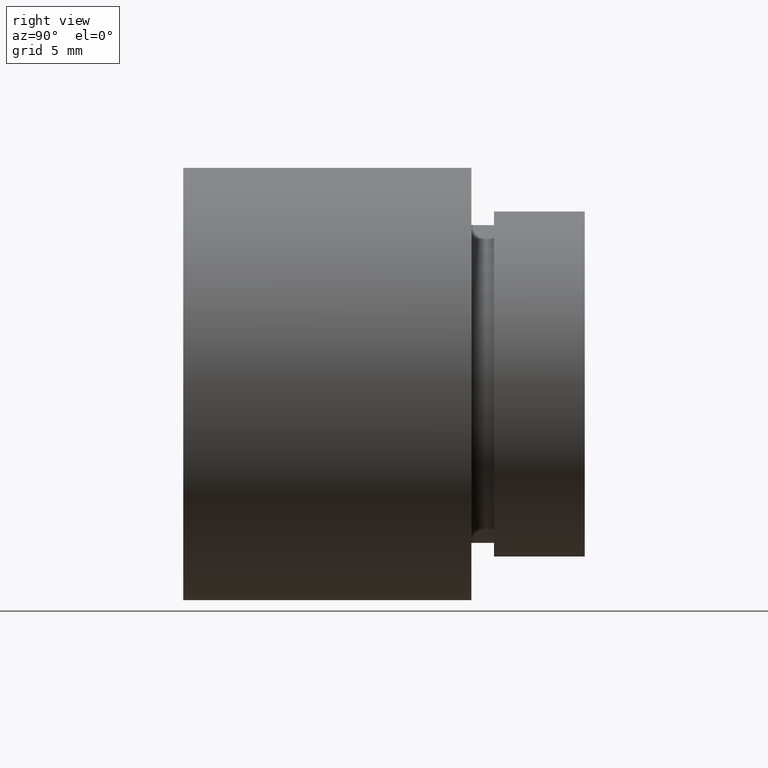
[diagram: clean part render]
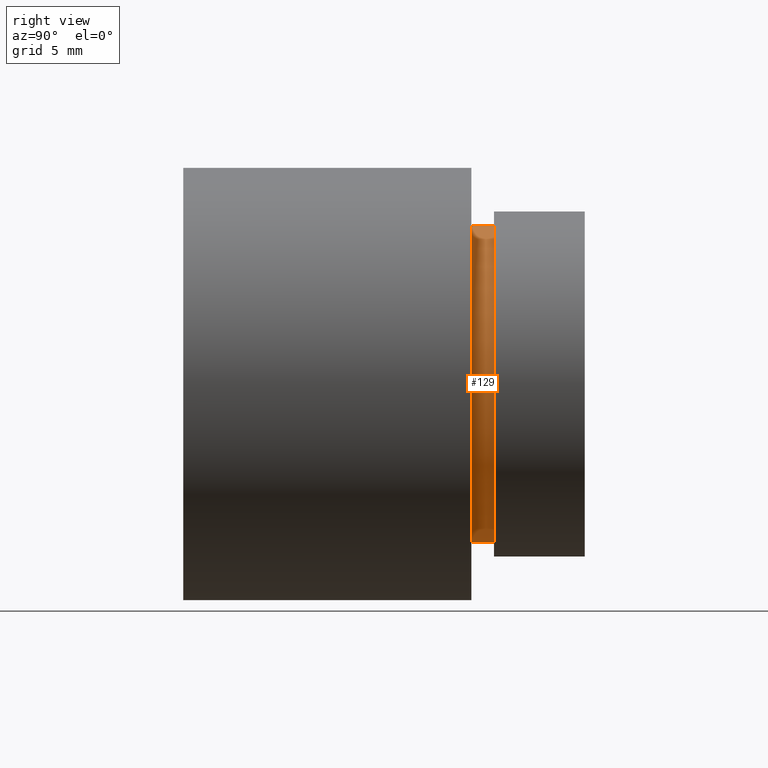
[diagram: same view with one face highlighted and labeled with its STEP entity id]
A machine part, right view. The second image highlights one B-rep face of the part: STEP entity #129.
In plain terms, the highlighted cylindrical surface (partial cylindrical patch) has radius 7 mm, axis along (-0, 1, -0).
Its self-contained STEP definition (entity closure, byte-faithful):
#17 = VECTOR ( 'NONE', #209, 1000.000000000000000 ) ;
#30 = VERTEX_POINT ( 'NONE', #285 ) ;
#45 = VECTOR ( 'NONE', #425, 1000.000000000000000 ) ;
#60 = DIRECTION ( 'NONE',  ( 0.0000000000000000000, 0.0000000000000000000, 1.000000000000000000 ) ) ;
#70 = EDGE_LOOP ( 'NONE', ( #212, #518, #110, #198 ) ) ;
#75 = FACE_OUTER_BOUND ( 'NONE', #70, .T. ) ;
#110 = ORIENTED_EDGE ( 'NONE', *, *, #317, .F. ) ;
#129 = ADVANCED_FACE ( 'NONE', ( #75 ), #440, .T. ) ;
#130 = CARTESIAN_POINT ( 'NONE',  ( 8.572527594031492900E-016, 161.3761669434274500, -7.000000000000016900 ) ) ;
#140 = LINE ( 'NONE', #509, #17 ) ;
#143 = CARTESIAN_POINT ( 'NONE',  ( 8.572527594031492900E-016, 12.69999999999998900, -7.000000000000016900 ) ) ;
#150 = CARTESIAN_POINT ( 'NONE',  ( 0.0000000000000000000, 161.3761669434274500, 0.0000000000000000000 ) ) ;
#151 = AXIS2_PLACEMENT_3D ( 'NONE', #442, #291, #192 ) ;
#152 = VERTEX_POINT ( 'NONE', #499 ) ;
#192 = DIRECTION ( 'NONE',  ( 0.0000000000000000000, 0.0000000000000000000, 1.000000000000000000 ) ) ;
#198 = ORIENTED_EDGE ( 'NONE', *, *, #238, .F. ) ;
#209 = DIRECTION ( 'NONE',  ( -0.0000000000000000000, 1.000000000000000000, -0.0000000000000000000 ) ) ;
#212 = ORIENTED_EDGE ( 'NONE', *, *, #537, .T. ) ;
#224 = CARTESIAN_POINT ( 'NONE',  ( 8.572527594031492900E-016, 13.69999999999999000, -7.000000000000016900 ) ) ;
#238 = EDGE_CURVE ( 'NONE', #152, #30, #140, .T. ) ;
#285 = CARTESIAN_POINT ( 'NONE',  ( 0.0000000000000000000, 13.69999999999999000, 7.000000000000016900 ) ) ;
#291 = DIRECTION ( 'NONE',  ( -0.0000000000000000000, 1.000000000000000000, -0.0000000000000000000 ) ) ;
#296 = DIRECTION ( 'NONE',  ( -0.0000000000000000000, 1.000000000000000000, -0.0000000000000000000 ) ) ;
#300 = VERTEX_POINT ( 'NONE', #224 ) ;
#317 = EDGE_CURVE ( 'NONE', #30, #300, #560, .T. ) ;
#361 = AXIS2_PLACEMENT_3D ( 'NONE', #371, #571, #566 ) ;
#365 = EDGE_CURVE ( 'NONE', #516, #300, #544, .T. ) ;
#371 = CARTESIAN_POINT ( 'NONE',  ( 0.0000000000000000000, 13.69999999999999000, 0.0000000000000000000 ) ) ;
#425 = DIRECTION ( 'NONE',  ( -0.0000000000000000000, 1.000000000000000000, -0.0000000000000000000 ) ) ;
#440 = CYLINDRICAL_SURFACE ( 'NONE', #508, 7.000000000000016900 ) ;
#442 = CARTESIAN_POINT ( 'NONE',  ( 0.0000000000000000000, 12.69999999999998900, 0.0000000000000000000 ) ) ;
#499 = CARTESIAN_POINT ( 'NONE',  ( 0.0000000000000000000, 12.69999999999998900, 7.000000000000016900 ) ) ;
#508 = AXIS2_PLACEMENT_3D ( 'NONE', #150, #296, #60 ) ;
#509 = CARTESIAN_POINT ( 'NONE',  ( 0.0000000000000000000, 161.3761669434274500, 7.000000000000016900 ) ) ;
#516 = VERTEX_POINT ( 'NONE', #143 ) ;
#518 = ORIENTED_EDGE ( 'NONE', *, *, #365, .T. ) ;
#537 = EDGE_CURVE ( 'NONE', #152, #516, #552, .T. ) ;
#544 = LINE ( 'NONE', #130, #45 ) ;
#552 = CIRCLE ( 'NONE', #151, 7.000000000000016900 ) ;
#560 = CIRCLE ( 'NONE', #361, 7.000000000000016900 ) ;
#566 = DIRECTION ( 'NONE',  ( 0.0000000000000000000, 0.0000000000000000000, 1.000000000000000000 ) ) ;
#571 = DIRECTION ( 'NONE',  ( -0.0000000000000000000, 1.000000000000000000, -0.0000000000000000000 ) ) ;